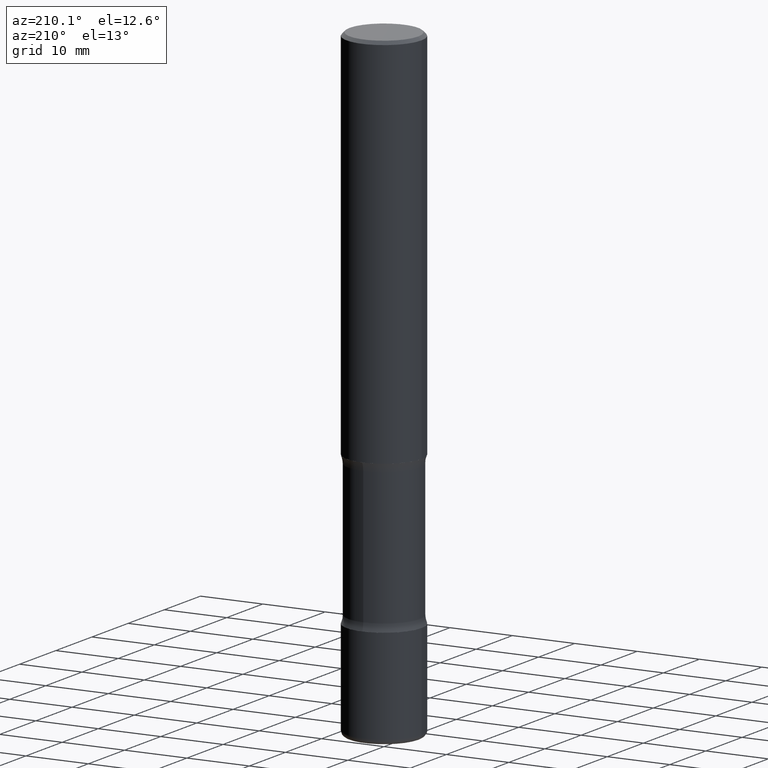
[diagram: clean part render]
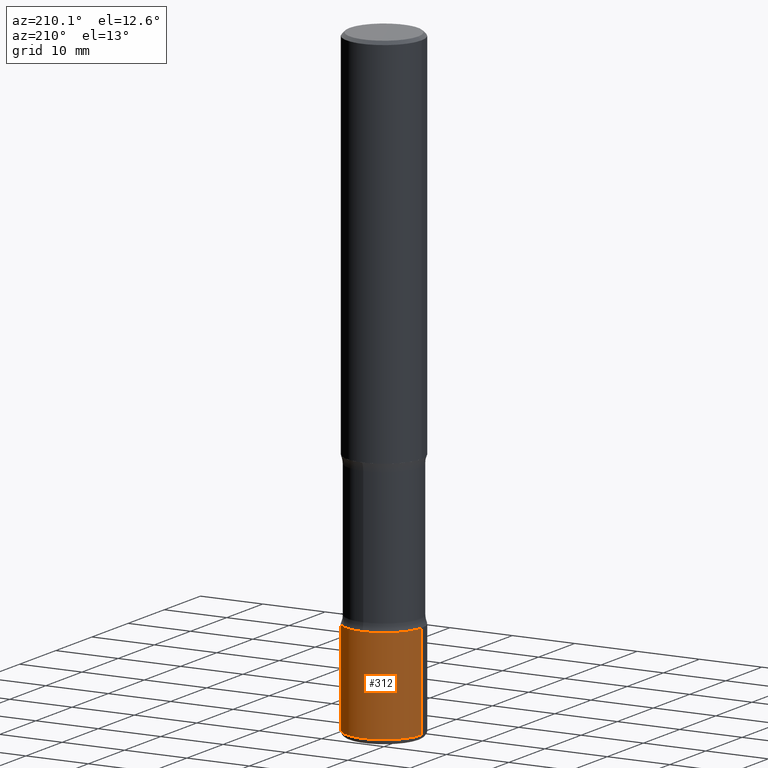
[diagram: same view with one face highlighted and labeled with its STEP entity id]
A machine part, auxiliary view. The second image highlights one B-rep face of the part: STEP entity #312.
In plain terms, the highlighted cylindrical surface (partial cylindrical patch) has radius 5.9995 mm, axis along (-0, 0, 1).
Its self-contained STEP definition (entity closure, byte-faithful):
#10 = CIRCLE ( 'NONE', #560, 0.2362000000000001321 ) ;
#71 = EDGE_CURVE ( 'NONE', #314, #394, #126, .T. ) ;
#87 = EDGE_CURVE ( 'NONE', #155, #497, #464, .T. ) ;
#110 = EDGE_CURVE ( 'NONE', #155, #314, #10, .T. ) ;
#126 = LINE ( 'NONE', #171, #254 ) ;
#148 = CYLINDRICAL_SURFACE ( 'NONE', #410, 0.2362000000000001321 ) ;
#155 = VERTEX_POINT ( 'NONE', #375 ) ;
#169 = CARTESIAN_POINT ( 'NONE',  ( 8.087409888934865187E-29, -1.154667793568816566E-14, -3.307099999999999707 ) ) ;
#171 = CARTESIAN_POINT ( 'NONE',  ( -0.2362000000000001321, 1.678301941865357577E-15, -1.161852468318209457E-29 ) ) ;
#184 = FACE_OUTER_BOUND ( 'NONE', #355, .T. ) ;
#203 = ORIENTED_EDGE ( 'NONE', *, *, #71, .T. ) ;
#204 = AXIS2_PLACEMENT_3D ( 'NONE', #169, #338, #471 ) ;
#207 = CARTESIAN_POINT ( 'NONE',  ( 9.550778422556051750E-29, -1.363598036885190475E-14, -3.905499999999999972 ) ) ;
#254 = VECTOR ( 'NONE', #293, 39.37007874015748143 ) ;
#284 = DIRECTION ( 'NONE',  ( 1.000000000000000000, -6.982962677686269077E-15, 0.000000000000000000 ) ) ;
#290 = CARTESIAN_POINT ( 'NONE',  ( 0.2362000000000001321, -1.649375784469497117E-15, 1.151752954443000789E-29 ) ) ;
#293 = DIRECTION ( 'NONE',  ( -2.445468806185136877E-29, 3.491481338843145188E-15, 1.000000000000000000 ) ) ;
#312 = ADVANCED_FACE ( 'NONE', ( #184 ), #148, .T. ) ;
#314 = VERTEX_POINT ( 'NONE', #475 ) ;
#337 = DIRECTION ( 'NONE',  ( -2.445468806185136877E-29, 3.491481338843145188E-15, 1.000000000000000000 ) ) ;
#338 = DIRECTION ( 'NONE',  ( -2.445468806185136597E-29, 3.491481338843145583E-15, 1.000000000000000000 ) ) ;
#344 = VECTOR ( 'NONE', #337, 39.37007874015748143 ) ;
#348 = CARTESIAN_POINT ( 'NONE',  ( 0.000000000000000000, 0.000000000000000000, 0.000000000000000000 ) ) ;
#354 = CARTESIAN_POINT ( 'NONE',  ( 0.2362000000000001598, -1.319605372015766376E-14, -3.307099999999999707 ) ) ;
#355 = EDGE_LOOP ( 'NONE', ( #522, #203, #439, #557 ) ) ;
#375 = CARTESIAN_POINT ( 'NONE',  ( 0.2362000000000001321, -1.528535615332140285E-14, -3.905499999999999972 ) ) ;
#394 = VERTEX_POINT ( 'NONE', #504 ) ;
#410 = AXIS2_PLACEMENT_3D ( 'NONE', #348, #523, #515 ) ;
#439 = ORIENTED_EDGE ( 'NONE', *, *, #482, .F. ) ;
#443 = CIRCLE ( 'NONE', #204, 0.2362000000000001598 ) ;
#464 = LINE ( 'NONE', #290, #344 ) ;
#471 = DIRECTION ( 'NONE',  ( 1.000000000000000000, -6.982962677686268288E-15, 0.000000000000000000 ) ) ;
#475 = CARTESIAN_POINT ( 'NONE',  ( -0.2362000000000001321, -1.195767842698654677E-14, -3.905499999999999972 ) ) ;
#482 = EDGE_CURVE ( 'NONE', #497, #394, #443, .T. ) ;
#497 = VERTEX_POINT ( 'NONE', #354 ) ;
#504 = CARTESIAN_POINT ( 'NONE',  ( -0.2362000000000002153, -1.091302721040467959E-14, -3.307099999999999707 ) ) ;
#505 = DIRECTION ( 'NONE',  ( -2.445468806185136597E-29, 3.491481338843145583E-15, 1.000000000000000000 ) ) ;
#515 = DIRECTION ( 'NONE',  ( 1.000000000000000000, -6.982962677686266711E-15, 4.876176775795936353E-29 ) ) ;
#522 = ORIENTED_EDGE ( 'NONE', *, *, #110, .T. ) ;
#523 = DIRECTION ( 'NONE',  ( -2.445468806185136597E-29, 3.491481338843145583E-15, 1.000000000000000000 ) ) ;
#557 = ORIENTED_EDGE ( 'NONE', *, *, #87, .F. ) ;
#560 = AXIS2_PLACEMENT_3D ( 'NONE', #207, #505, #284 ) ;